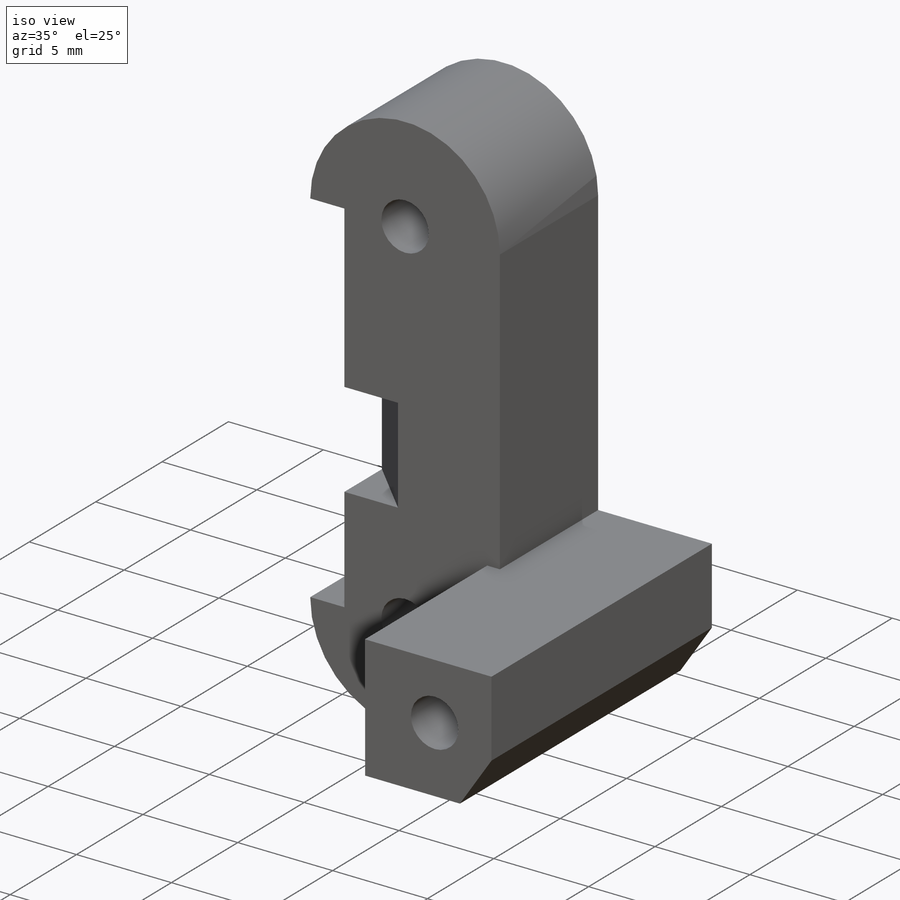
[diagram: iso view]
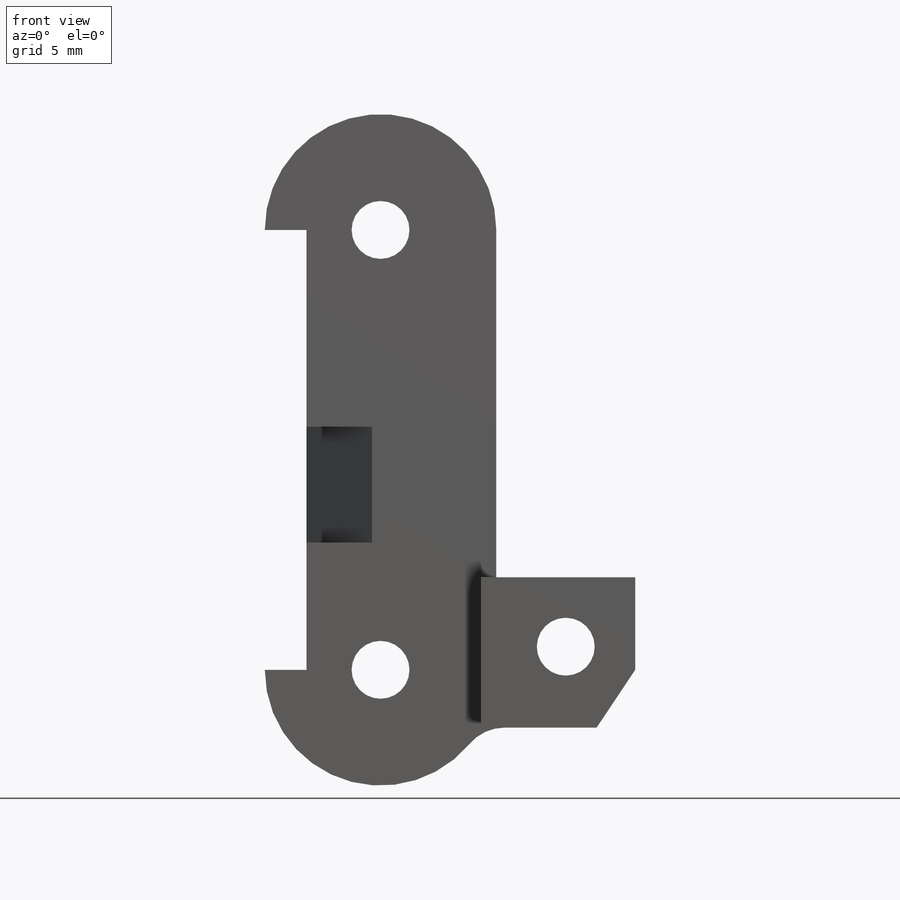
[diagram: front view]
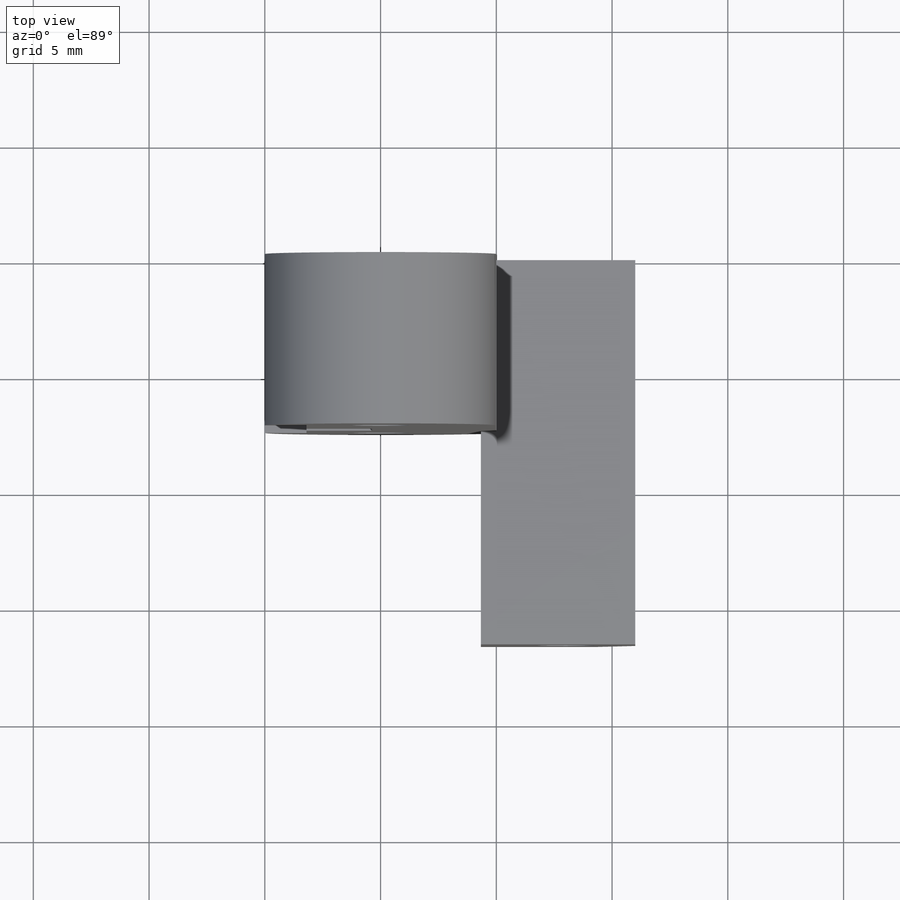
[diagram: top view]
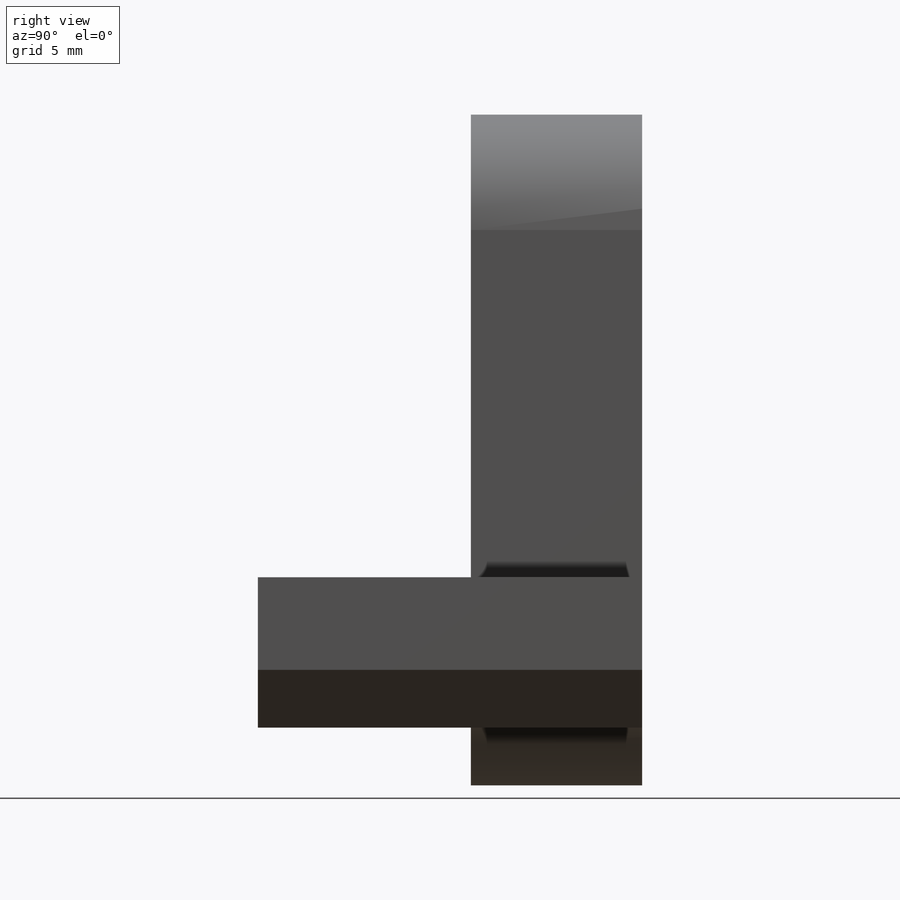
[diagram: right view]
SOLIDWORKS PART (.sldprt)
format: sldprt  version: not decoded by parser v0  size: 348,672 bytes
history: native  units: mm
features: sketch x12, thread x5, plane x4, hole x3, extrude x2, material x1, fillet x1, cut_extrude x1 (+10 scaffold rows collapsed)
feature tree (39):
  scaffold x10  (default folders/planes/origin — collapsed)
  material  "材质 <未指定>"
  plane  "前视基准面"
  plane  "上视基准面"
  plane  "右视基准面"
  sketch  "草图1"  dims[c1.D1=5.0mm c1.D4=~6.968173mm c2.D4=5.0mm c2.D2=1.8mm c2.D3=19.0mm c2.D5=5.0mm c2.D6=3.0mm c2.D7=4.0mm c2.D8=6.0mm c2.D9=15.0mm c2.D10=6.0mm]
  extrude  "凸台-拉伸1"  Depth=7.4mm
  sketch  "草图2"
  extrude  "凸台-拉伸2"  Depth=9.2mm
  sketch  "草图3"  dims[D1=3.0mm D2=3.0mm]
  sketch  "草图4"  dims[D3=3.0mm D1=8.0mm D2=3.0mm]
  sketch  "草图5"  dims[D1=3.0mm D2=4.0mm D3=10.0mm D4=3.0mm]
  hole  "M3 螺纹孔1"  [1 undecoded]
  sketch  "3D草图1"
  sketch  "草图6"  dims[hole-wizard template sketch: 50 standard entries collapsed; hole parameters above]
  thread  "孔螺蚊线1"  Diameter=4mm  [1 undecoded]
  thread  "孔螺蚊线2"  Diameter=4mm  [1 undecoded]
  hole  "M3 螺纹孔3"  [1 undecoded]
  sketch  "3D草图3"
  sketch  "草图8"  dims[hole-wizard template sketch: 60 standard entries collapsed; hole parameters kept: c18.通孔螺纹孔钻头深度=~7.400025mm]
  thread  "孔螺蚊线3"  Diameter=3mm  [1 undecoded]
  thread  "孔螺蚊线4"  Diameter=3mm  [1 undecoded]
  hole  "M3 螺纹孔4"  [1 undecoded]
  sketch  "3D草图4"
  sketch  "草图9"  dims[hole-wizard template sketch: 60 standard entries collapsed; hole parameters kept: c18.通孔螺纹孔钻头深度=~16.600025mm]
  thread  "孔螺蚊线5"  Diameter=3mm  [1 undecoded]
  fillet  "圆角1"  Radius=2mm
  plane  "基准面1"  Offset=5.5mm
  sketch  "草图10"  dims[D1=4.0mm]
  cut_extrude  "切除-拉伸1"  Depth=5mm
decode coverage: 17 of 24 modeling features carry decoded parameters
note: ~ marks probable driven/reference dimensions
note: 8 parameter values undecoded
summary: no parameter record found for 3 features
note: suppression state not decoded; provenance and decode notes live in map.json
